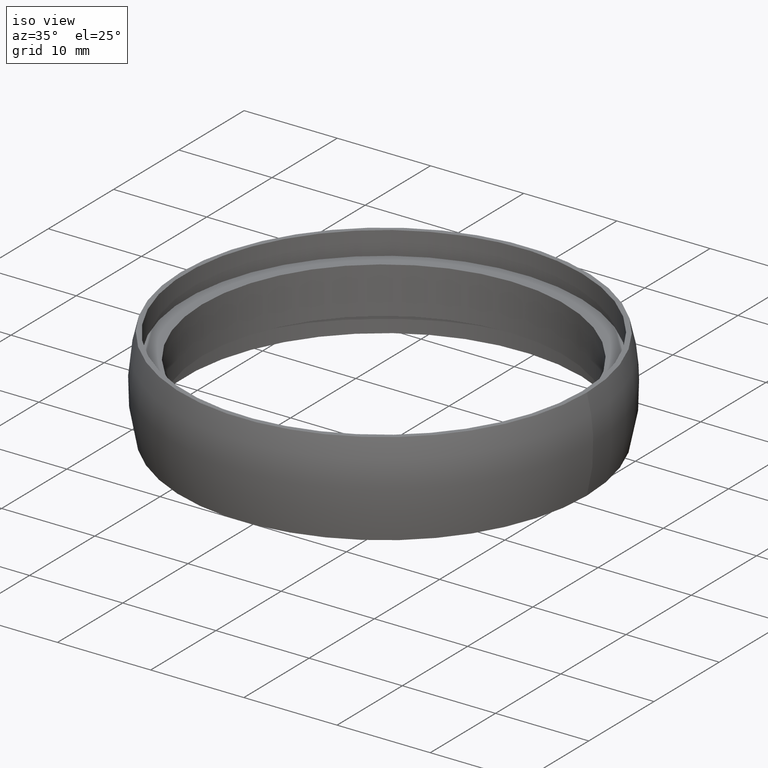
[diagram: clean part render]
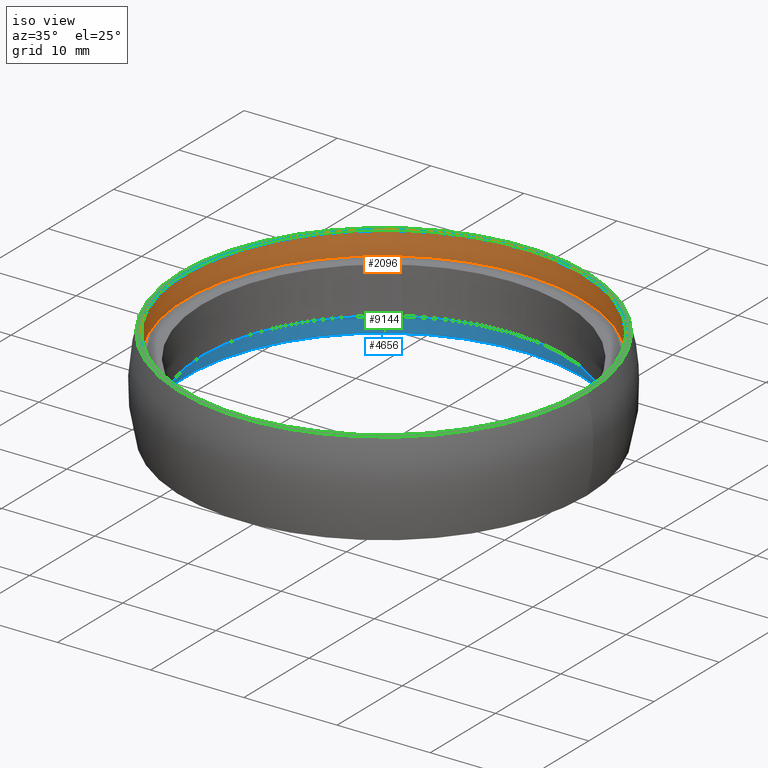
[diagram: same view with three faces highlighted in distinct colors, each labeled with its STEP entity id]
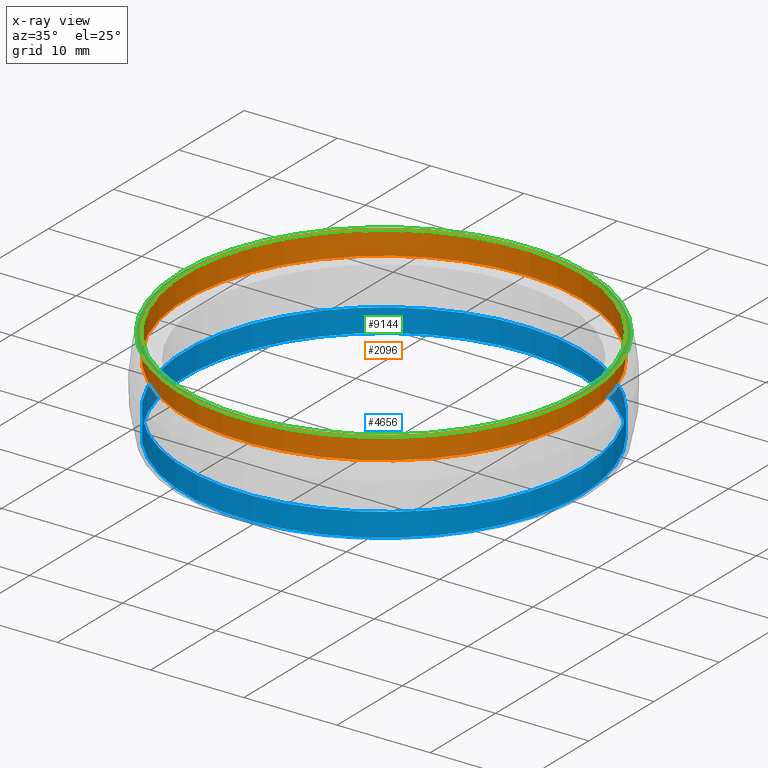
[diagram: x-ray of the same camera — body ghosted, the three highlighted faces saturated]
A machine part, iso view with three faces highlighted in distinct colors.
The next image is the same camera in x-ray (body ghosted, the three faces saturated) — at least one of them is partly hidden behind the body in this view.
Their STEP definitions:

[orange] entity #2096 — the highlighted cylindrical surface (bore or boss wall) has radius 21.3 mm, axis along (-0, -0, 1).
#56 = ORIENTED_EDGE ( 'NONE', *, *, #5561, .T. ) ;
#484 = FACE_OUTER_BOUND ( 'NONE', #2587, .T. ) ;
#513 = EDGE_CURVE ( 'NONE', #7964, #7964, #11952, .T. ) ;
#830 = ORIENTED_EDGE ( 'NONE', *, *, #513, .F. ) ;
#1833 = DIRECTION ( 'NONE',  ( -0.0000000000000000000, -0.0000000000000000000, 1.000000000000000000 ) ) ;
#1882 = CARTESIAN_POINT ( 'NONE',  ( 0.0000000000000000000, 0.0000000000000000000, 0.0000000000000000000 ) ) ;
#2096 = ADVANCED_FACE ( 'NONE', ( #484, #8212 ), #4728, .F. ) ;
#2152 = CARTESIAN_POINT ( 'NONE',  ( 0.0000000000000000000, 0.0000000000000000000, 5.000000000000000000 ) ) ;
#2587 = EDGE_LOOP ( 'NONE', ( #830 ) ) ;
#3850 = AXIS2_PLACEMENT_3D ( 'NONE', #6702, #5848, #6820 ) ;
#4202 = AXIS2_PLACEMENT_3D ( 'NONE', #2152, #7980, #6920 ) ;
#4728 = CYLINDRICAL_SURFACE ( 'NONE', #10881, 21.30000000000000100 ) ;
#5089 = VERTEX_POINT ( 'NONE', #9146 ) ;
#5561 = EDGE_CURVE ( 'NONE', #5089, #5089, #9510, .T. ) ;
#5848 = DIRECTION ( 'NONE',  ( -0.0000000000000000000, -0.0000000000000000000, 1.000000000000000000 ) ) ;
#6702 = CARTESIAN_POINT ( 'NONE',  ( 0.0000000000000000000, 0.0000000000000000000, 2.500000000000000400 ) ) ;
#6820 = DIRECTION ( 'NONE',  ( 1.000000000000000000, 0.0000000000000000000, 0.0000000000000000000 ) ) ;
#6920 = DIRECTION ( 'NONE',  ( 1.000000000000000000, 0.0000000000000000000, 0.0000000000000000000 ) ) ;
#7964 = VERTEX_POINT ( 'NONE', #11140 ) ;
#7980 = DIRECTION ( 'NONE',  ( -0.0000000000000000000, -0.0000000000000000000, 1.000000000000000000 ) ) ;
#8212 = FACE_OUTER_BOUND ( 'NONE', #10481, .T. ) ;
#9146 = CARTESIAN_POINT ( 'NONE',  ( 21.30000000000000100, 0.0000000000000000000, 5.000000000000000000 ) ) ;
#9510 = CIRCLE ( 'NONE', #4202, 21.30000000000000100 ) ;
#10481 = EDGE_LOOP ( 'NONE', ( #56 ) ) ;
#10881 = AXIS2_PLACEMENT_3D ( 'NONE', #1882, #1833, #11489 ) ;
#11140 = CARTESIAN_POINT ( 'NONE',  ( 21.30000000000000100, 0.0000000000000000000, 2.500000000000000400 ) ) ;
#11489 = DIRECTION ( 'NONE',  ( 1.000000000000000000, 0.0000000000000000000, 0.0000000000000000000 ) ) ;
#11952 = CIRCLE ( 'NONE', #3850, 21.30000000000000100 ) ;

[blue] entity #4656 — the highlighted cylindrical surface (bore or boss wall) has radius 21.3 mm, axis along (-0, -0, 1).
#87 = DIRECTION ( 'NONE',  ( -0.0000000000000000000, -0.0000000000000000000, 1.000000000000000000 ) ) ;
#475 = EDGE_LOOP ( 'NONE', ( #4296 ) ) ;
#848 = CIRCLE ( 'NONE', #10025, 21.30000000000000100 ) ;
#1732 = DIRECTION ( 'NONE',  ( -0.0000000000000000000, -0.0000000000000000000, 1.000000000000000000 ) ) ;
#1770 = CARTESIAN_POINT ( 'NONE',  ( 0.0000000000000000000, 0.0000000000000000000, -2.500000000000000400 ) ) ;
#2050 = CARTESIAN_POINT ( 'NONE',  ( 0.0000000000000000000, 0.0000000000000000000, -5.000000000000000000 ) ) ;
#2718 = AXIS2_PLACEMENT_3D ( 'NONE', #7463, #3414, #10125 ) ;
#2854 = CYLINDRICAL_SURFACE ( 'NONE', #2718, 21.30000000000000100 ) ;
#3414 = DIRECTION ( 'NONE',  ( -0.0000000000000000000, -0.0000000000000000000, 1.000000000000000000 ) ) ;
#4296 = ORIENTED_EDGE ( 'NONE', *, *, #5059, .T. ) ;
#4337 = CARTESIAN_POINT ( 'NONE',  ( 21.30000000000000100, 0.0000000000000000000, -2.500000000000000400 ) ) ;
#4656 = ADVANCED_FACE ( 'NONE', ( #8033, #5462 ), #2854, .F. ) ;
#5059 = EDGE_CURVE ( 'NONE', #10207, #10207, #10563, .T. ) ;
#5462 = FACE_OUTER_BOUND ( 'NONE', #475, .T. ) ;
#6322 = CARTESIAN_POINT ( 'NONE',  ( 21.30000000000000100, 0.0000000000000000000, -5.000000000000000000 ) ) ;
#6456 = VERTEX_POINT ( 'NONE', #6322 ) ;
#7463 = CARTESIAN_POINT ( 'NONE',  ( 0.0000000000000000000, 0.0000000000000000000, 0.0000000000000000000 ) ) ;
#7506 = EDGE_LOOP ( 'NONE', ( #11494 ) ) ;
#7925 = AXIS2_PLACEMENT_3D ( 'NONE', #1770, #1732, #10447 ) ;
#8033 = FACE_OUTER_BOUND ( 'NONE', #7506, .T. ) ;
#8353 = EDGE_CURVE ( 'NONE', #6456, #6456, #848, .T. ) ;
#10025 = AXIS2_PLACEMENT_3D ( 'NONE', #2050, #87, #10711 ) ;
#10125 = DIRECTION ( 'NONE',  ( 1.000000000000000000, 0.0000000000000000000, 0.0000000000000000000 ) ) ;
#10207 = VERTEX_POINT ( 'NONE', #4337 ) ;
#10447 = DIRECTION ( 'NONE',  ( 1.000000000000000000, 0.0000000000000000000, 0.0000000000000000000 ) ) ;
#10563 = CIRCLE ( 'NONE', #7925, 21.30000000000000100 ) ;
#10711 = DIRECTION ( 'NONE',  ( 1.000000000000000000, 0.0000000000000000000, 0.0000000000000000000 ) ) ;
#11494 = ORIENTED_EDGE ( 'NONE', *, *, #8353, .F. ) ;

[green] entity #9144 — the highlighted planar face has unit normal (0, 0, -1).
#320 = AXIS2_PLACEMENT_3D ( 'NONE', #7349, #1526, #4389 ) ;
#1526 = DIRECTION ( 'NONE',  ( -0.0000000000000000000, -0.0000000000000000000, 1.000000000000000000 ) ) ;
#1771 = DIRECTION ( 'NONE',  ( -1.000000000000000000, 0.0000000000000000000, -0.0000000000000000000 ) ) ;
#1902 = CIRCLE ( 'NONE', #320, 21.80000000000000100 ) ;
#2152 = CARTESIAN_POINT ( 'NONE',  ( 0.0000000000000000000, 0.0000000000000000000, 5.000000000000000000 ) ) ;
#2173 = VERTEX_POINT ( 'NONE', #2485 ) ;
#2485 = CARTESIAN_POINT ( 'NONE',  ( 21.80000000000000100, 0.0000000000000000000, 5.000000000000000900 ) ) ;
#4202 = AXIS2_PLACEMENT_3D ( 'NONE', #2152, #7980, #6920 ) ;
#4218 = EDGE_LOOP ( 'NONE', ( #7484 ) ) ;
#4389 = DIRECTION ( 'NONE',  ( 1.000000000000000000, 0.0000000000000000000, 0.0000000000000000000 ) ) ;
#4675 = ORIENTED_EDGE ( 'NONE', *, *, #7792, .T. ) ;
#5089 = VERTEX_POINT ( 'NONE', #9146 ) ;
#5208 = AXIS2_PLACEMENT_3D ( 'NONE', #7593, #10324, #1771 ) ;
#5561 = EDGE_CURVE ( 'NONE', #5089, #5089, #9510, .T. ) ;
#5648 = PLANE ( 'NONE',  #5208 ) ;
#6920 = DIRECTION ( 'NONE',  ( 1.000000000000000000, 0.0000000000000000000, 0.0000000000000000000 ) ) ;
#7349 = CARTESIAN_POINT ( 'NONE',  ( 0.0000000000000000000, 0.0000000000000000000, 5.000000000000000900 ) ) ;
#7484 = ORIENTED_EDGE ( 'NONE', *, *, #5561, .F. ) ;
#7593 = CARTESIAN_POINT ( 'NONE',  ( 0.0000000000000000000, 21.30000000000000100, 5.000000000000000900 ) ) ;
#7792 = EDGE_CURVE ( 'NONE', #2173, #2173, #1902, .T. ) ;
#7980 = DIRECTION ( 'NONE',  ( -0.0000000000000000000, -0.0000000000000000000, 1.000000000000000000 ) ) ;
#8597 = FACE_OUTER_BOUND ( 'NONE', #11963, .T. ) ;
#9144 = ADVANCED_FACE ( 'NONE', ( #10654, #8597 ), #5648, .F. ) ;
#9146 = CARTESIAN_POINT ( 'NONE',  ( 21.30000000000000100, 0.0000000000000000000, 5.000000000000000000 ) ) ;
#9510 = CIRCLE ( 'NONE', #4202, 21.30000000000000100 ) ;
#10324 = DIRECTION ( 'NONE',  ( 0.0000000000000000000, 0.0000000000000000000, -1.000000000000000000 ) ) ;
#10654 = FACE_BOUND ( 'NONE', #4218, .T. ) ;
#11963 = EDGE_LOOP ( 'NONE', ( #4675 ) ) ;